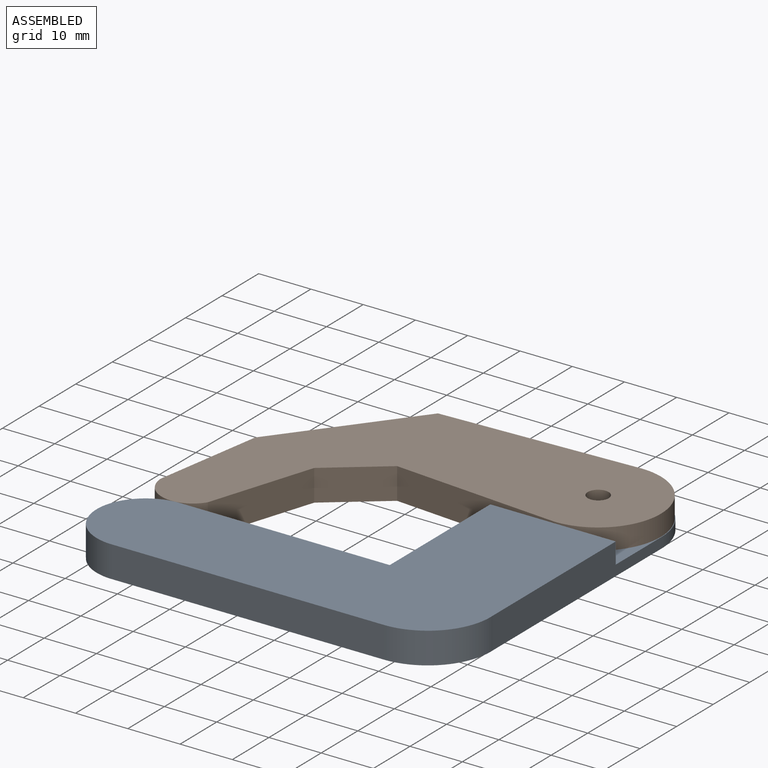
[diagram: assembled view]
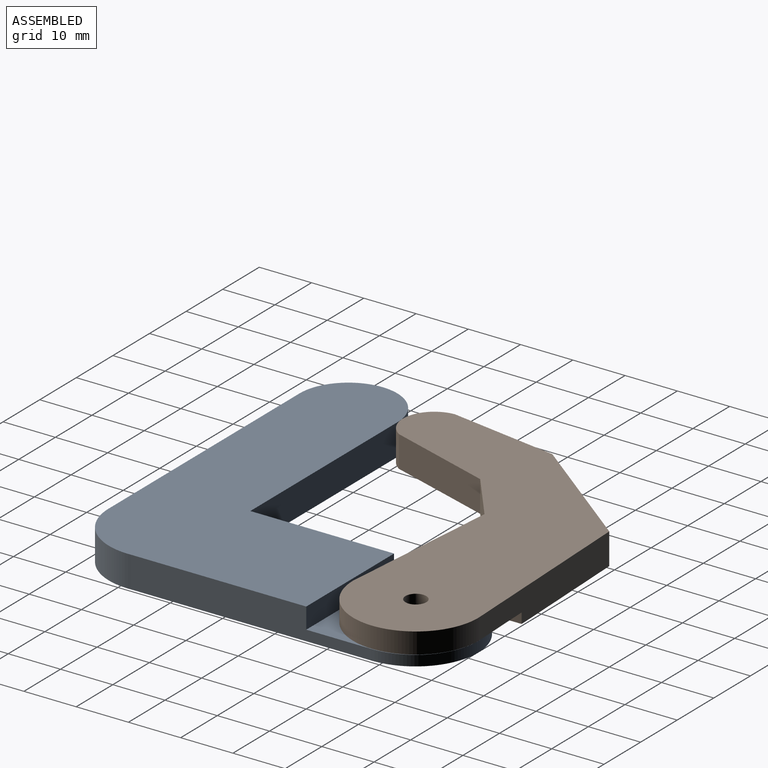
[diagram: assembled view, second angle]
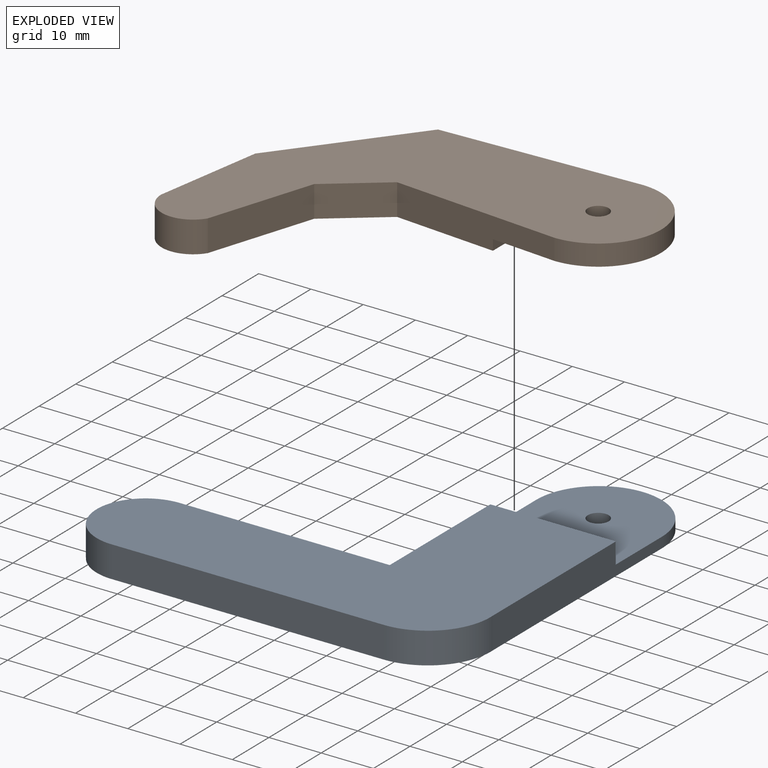
[diagram: exploded view]
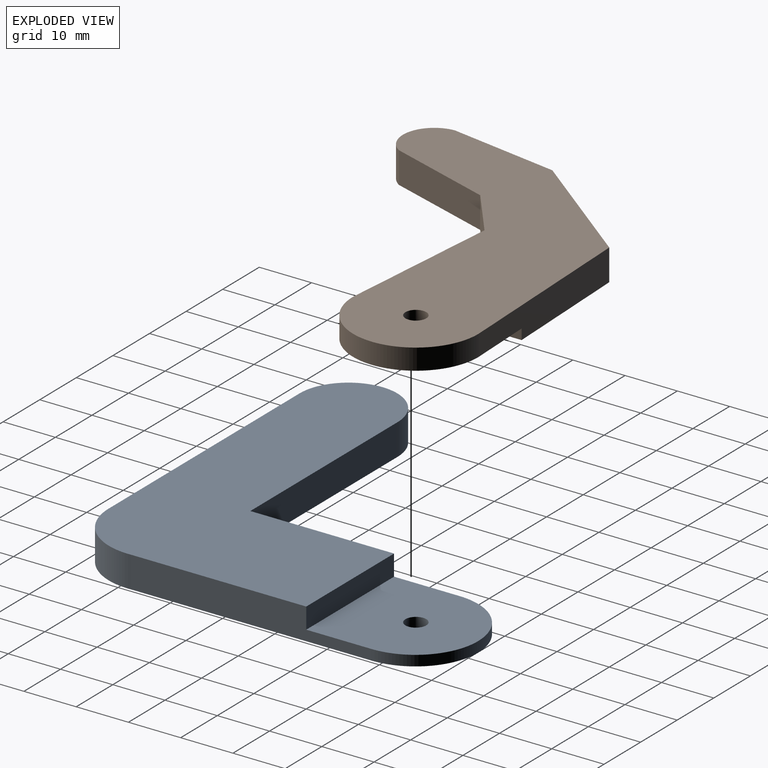
[diagram: exploded view, second angle]
FCSTD DOCUMENT  (FreeCAD 1.0R39109 (Git))
Label: pinza_en_0
License: All rights reserved
LicenseURL: https://en.wikipedia.org/wiki/All_rights_reserved
objects: Sketcher::SketchObject×4, Part::Extrusion×2, PartDesign::FeatureBase×2, PartDesign::Pocket×2, PartDesign::Body×2, App::Link×2, App::FeaturePython×2, Part::FeaturePython×2, Image::ImagePlane×1, Assembly::JointGroup×1, Assembly::AssemblyObject×1
note: 24 computed .brp shape members not serialized (recipe doc carries the construction recipe); baked Part::Feature solids carry a one-line shape summary decoded from their .brp

FEATURE [Image::ImagePlane] __pinza_1_pinza  label="9_pinza_1 pinza"
  Placement = pos=(-27,-38,0) rot=(0,0,1;0rad)
  XSize = 197.326
  YSize = 139.554
FEATURE [Sketcher::SketchObject] Sketch  label="base_pinza"
  ArcFitTolerance = 1e-06
  FullyConstrained = false
  MakeInternals = false
  sketch-geometry (8):
    g0: Circle CenterX=0 CenterY=0 CenterZ=0 NormalX=0 NormalY=0 NormalZ=1 AngleXU=0 Radius=2
    g1: ArcOfCircle CenterX=0.109972 CenterY=-3.06164e-06 CenterZ=0 NormalX=0 NormalY=0 NormalZ=1 AngleXU=0 Radius=12 StartAngle=2.55136e-07 EndAngle=3.14161
    g2: LineSegment StartX=12.11 StartY=0 StartZ=0 EndX=12.11 EndY=-46 EndZ=0
    g3: LineSegment StartX=-52.0205 StartY=-58.7059 StartZ=0 EndX=-0.020473 EndY=-58.7059 EndZ=0
    g4: ArcOfCircle CenterX=0.034045 CenterY=-46.6145 CenterZ=0 NormalX=0 NormalY=0 NormalZ=1 AngleXU=0 Radius=12.0915 StartAngle=4.70788 EndAngle=6.33402
    g5: LineSegment StartX=-11.89 StartY=-0.000266153 StartZ=0 EndX=-11.89 EndY=-40.0003 EndZ=0
    g6: LineSegment StartX=-11.89 StartY=-40.0003 StartZ=0 EndX=-51.89 EndY=-40.0003 EndZ=0
    g7: ArcOfCircle CenterX=-52.0588 CenterY=-49.3524 CenterZ=0 NormalX=0 NormalY=0 NormalZ=1 AngleXU=0 Radius=9.35361 StartAngle=1.55275 EndAngle=4.71649
  constraints (18):
    c: Diameter(g0) = 4
    c: Radius(g1) = 12
    c: PointOnObject(g1,g-1)
    c: Distance(g2) = 46
    c: Vertical(g2)
    c: Coincident(g2,g1)
    c: Distance(g3) = 52
    c: Horizontal(g3)
    c: Coincident(g4,g2)
    c: Coincident(g4,g3)
    c: Distance(g5) = 40
    c: Vertical(g5)
    c: Coincident(g5,g1)
    c: Distance(g6) = 40
    c: Horizontal(g6)
    c: Coincident(g6,g5)
    c: Coincident(g7,g6)
    c: Coincident(g7,g3)
FEATURE [Part::Extrusion] Extrude  label="base_pinza001"
  Base = -> Sketch
  Dir = (0,0,1)
  DirMode = 0
  FaceMakerClass = Part::FaceMakerBullseye
  FaceMakerMode = 3
  LengthFwd = 6
  LengthRev = 0
  Solid = true
  Symmetric = false
FEATURE [Sketcher::SketchObject] Sketch001  label="movible_pinza"
  ArcFitTolerance = 1e-06
  FullyConstrained = false
  MakeInternals = false
  sketch-geometry (9):
    g0: Circle CenterX=0 CenterY=0 CenterZ=0 NormalX=0 NormalY=0 NormalZ=1 AngleXU=0 Radius=2
    g1: ArcOfCircle CenterX=0 CenterY=0 CenterZ=0 NormalX=0 NormalY=0 NormalZ=1 AngleXU=0 Radius=12 StartAngle=4.71239 EndAngle=7.85398
    g2: LineSegment StartX=3.7e-15 StartY=12 StartZ=0 EndX=-37.9674 EndY=10.4256 EndZ=0
    g3: LineSegment StartX=-37.9674 StartY=10.4256 StartZ=0 EndX=-56.3136 EndY=-13.3109 EndZ=0
    g4: LineSegment StartX=-56.3136 StartY=-13.3109 StartZ=0 EndX=-59.6792 EndY=-34.3109 EndZ=0
    g5: LineSegment StartX=-2.2e-15 StartY=-12 StartZ=0 EndX=-32 EndY=-9.27445 EndZ=0
    g6: LineSegment StartX=-32 StartY=-9.27445 StartZ=0 EndX=-42.247 EndY=-17.2744 EndZ=0
    g7: LineSegment StartX=-42.247 StartY=-17.2744 StartZ=0 EndX=-48.6146 EndY=-37.2744 EndZ=0
    g8: ArcOfCircle CenterX=-53.6842 CenterY=-34.0653 CenterZ=0 NormalX=0 NormalY=0 NormalZ=1 AngleXU=0 Radius=6 StartAngle=3.18253 EndAngle=5.71884
  constraints (22):
    c: Diameter(g0) = 4
    c: Coincident(g0,g-1)
    c: Radius(g1) = 12
    c: Coincident(g1,g0)
    c: PointOnObject(g1,g-2)
    c: PointOnObject(g1,g-2)
    c: Distance(g2) = 38
    c: Coincident(g2,g1)
    c: Coincident(g3,g2)
    c: Coincident(g4,g3)
    c: Coincident(g5,g1)
    c: Coincident(g6,g5)
    c: Coincident(g7,g6)
    c: Distance(g3,g3) = 30
    c: DistanceY(g6,g6) = 8
    c: DistanceX(g5,g5) = 32
    c: Coincident(g8,g4)
    c: Coincident(g8,g7)
    c: DistanceY(g4,g4) = 21
    c: DistanceY(g7,g7) = 20
    c: Distance(g6,g6) = 13
    c: Radius(g8) = 6
FEATURE [Part::Extrusion] Extrude001  label="movible_pinza001"
  Base = -> Sketch001
  Dir = (0,0,1)
  DirMode = 0
  FaceMakerClass = Part::FaceMakerBullseye
  FaceMakerMode = 3
  LengthFwd = 6
  LengthRev = 0
  Solid = true
  Symmetric = false
FEATURE [Sketcher::SketchObject] Sketch002  label="encaje"
  ArcFitTolerance = 1e-06
  FullyConstrained = true
  MakeInternals = false
  Placement = pos=(0,0,6) rot=(0,0,1;0rad)
  sketch-geometry (5):
    g0: LineSegment StartX=-12.5 StartY=-12.5 StartZ=0 EndX=12.5 EndY=-12.5 EndZ=0
    g1: LineSegment StartX=12.5 StartY=-12.5 StartZ=0 EndX=12.5 EndY=12.5 EndZ=0
    g2: LineSegment StartX=12.5 StartY=12.5 StartZ=0 EndX=-12.5 EndY=12.5 EndZ=0
    g3: LineSegment StartX=-12.5 StartY=12.5 StartZ=0 EndX=-12.5 EndY=-12.5 EndZ=0
    g4: GeomPoint [constr] X=0 Y=0 Z=0
  constraints (12):
    c: Coincident(g0,g1)
    c: Coincident(g1,g2)
    c: Coincident(g2,g3)
    c: Coincident(g3,g0)
    c: Horizontal(g0)
    c: Horizontal(g2)
    c: Vertical(g1)
    c: Vertical(g3)
    c: Symmetric(g2,g0,g4)
    c: Distance(g1,g3) = 25
    c: Distance(g0,g2) = 25
    c: Coincident(g4,g-1)
FEATURE [PartDesign::FeatureBase] BaseFeature
  BaseFeature = -> Extrude
  Suppressed = false
FEATURE [PartDesign::Pocket] Pocket
  BaseFeature = -> BaseFeature
  Direction = (0,0,-1)
  Length = 4
  Length2 = 5
  Profile = -> Sketch002
  ReferenceAxis = -> Sketch002 [N_Axis]
  Refine = true
  Suppressed = false
  Type = 0
FEATURE [PartDesign::Body] Body
  AllowCompound = false
  BaseFeature = -> Extrude
  Group = -> [BaseFeature,Sketch002,Pocket]
  Origin = -> Origin
  Placement = pos=(4.76837e-07,0,0) rot=(0,0,1;0rad)
  Tip = -> Pocket
FEATURE [Sketcher::SketchObject] Sketch003  label="encaje001"
  ArcFitTolerance = 1e-06
  FullyConstrained = true
  MakeInternals = false
  sketch-geometry (5):
    g0: LineSegment StartX=-12.5 StartY=-12.5 StartZ=0 EndX=12.5 EndY=-12.5 EndZ=0
    g1: LineSegment StartX=12.5 StartY=-12.5 StartZ=0 EndX=12.5 EndY=12.5 EndZ=0
    g2: LineSegment StartX=12.5 StartY=12.5 StartZ=0 EndX=-12.5 EndY=12.5 EndZ=0
    g3: LineSegment StartX=-12.5 StartY=12.5 StartZ=0 EndX=-12.5 EndY=-12.5 EndZ=0
    g4: GeomPoint [constr] X=0 Y=0 Z=0
  constraints (12):
    c: Coincident(g0,g1)
    c: Coincident(g1,g2)
    c: Coincident(g2,g3)
    c: Coincident(g3,g0)
    c: Horizontal(g0)
    c: Horizontal(g2)
    c: Vertical(g1)
    c: Vertical(g3)
    c: Symmetric(g2,g0,g4)
    c: Distance(g1,g3) = 25
    c: Distance(g0,g2) = 25
    c: Coincident(g4,g-1)
FEATURE [PartDesign::FeatureBase] BaseFeature001
  BaseFeature = -> Extrude001
  Suppressed = false
FEATURE [PartDesign::Pocket] Pocket001
  BaseFeature = -> BaseFeature001
  Direction = (0,0,-1)
  Length = 2
  Length2 = 5
  Profile = -> Sketch003
  ReferenceAxis = -> Sketch003 [N_Axis]
  Refine = true
  Reversed = true
  Suppressed = false
  Type = 0
FEATURE [PartDesign::Body] Body001
  AllowCompound = false
  BaseFeature = -> Extrude001
  Group = -> [BaseFeature001,Sketch003,Pocket001]
  Origin = -> Origin001
  Tip = -> Pocket001
FEATURE [App::Link] Body002
  LinkedObject = -> Body
FEATURE [App::FeaturePython] GroundedJoint  # Assembly grounded joint (typed FeaturePython)
  ObjectToGround = -> Body002
FEATURE [App::Link] Body003
  LinkedObject = -> Body001
FEATURE [App::FeaturePython] Joint  label="Revolute"  # Assembly joint (typed FeaturePython)
  Activated = true
  AngleMax = 90
  AngleMin = 0
  Detach1 = false
  Detach2 = false
  Distance = 0
  Distance2 = 0
  EnableAngleMax = true
  EnableAngleMin = true
  EnableLengthMax = false
  EnableLengthMin = false
  JointType = 1 (Revolute)
  LengthMax = 0
  LengthMin = 0
  Reference1 = -> Assembly [Body003.,Body003.]
  Reference2 = -> Assembly [Body002.,Body002.]
FEATURE [Assembly::JointGroup] Joints
  Group = -> [GroundedJoint,Joint]
FEATURE [Assembly::AssemblyObject] Assembly
  Group = -> [Joints,Body002,GroundedJoint,Body003,Joint]
  Origin = -> Origin002
  Type = Assembly
FEATURE [Part::FeaturePython] Screw  label="#10x9.76-Screw"  # WARN: FeaturePython — macro-defined, semantics opaque (R4)
  BaseObject = -> Assembly [Body003.Pocket001.Edge19]
  Diameter = 9
  Invert = false
  LeftHanded = false
  Length = 32
  LengthCustom = 9.76
  MatchOuter = false
  OffsetAngle = 0
  Placement = pos=(0,0,6) rot=(0,0,1;0rad)
  Thread = false
  Type = 3
FEATURE [Part::FeaturePython] Nut  label="1/4in-Nut"  # WARN: FeaturePython — macro-defined, semantics opaque (R4)
  BaseObject = -> Screw [Edge33]
  Diameter = 11
  Invert = false
  LeftHanded = false
  MatchOuter = false
  OffsetAngle = 0
  Placement = pos=(0,0,-3.2774) rot=(0,0,1;0rad)
  Thread = false
  Type = 2
